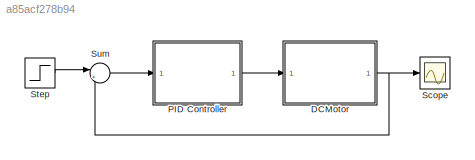
MODEL slx_a85acf278b94
KIND model
CONFIG AbsTol = auto
CONFIG EnableMultiTasking = off
CONFIG FixedStep = auto
CONFIG MaxStep = auto
CONFIG MinStep = auto
CONFIG RelTol = 1e-3
CONFIG SampleTimeConstraint = Unconstrained
CONFIG SolverName = VariableStepAuto
CONFIG StartTime = 0.0
CONFIG StopTime = 10.0
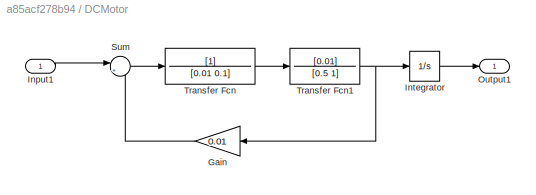
BLOCK [SubSystem] DCMotor
BLOCK [Gain] DCMotor/Gain
  Gain = 0.01
  NameLocation = top
BLOCK [Inport] DCMotor/Input1
BLOCK [Integrator] DCMotor/Integrator
BLOCK [Outport] DCMotor/Output1
BLOCK [Sum] DCMotor/Sum
  Inputs = |+-
BLOCK [TransferFcn] DCMotor/Transfer Fcn
  Denominator = [0.01 0.1]
BLOCK [TransferFcn] DCMotor/Transfer Fcn1
  Denominator = [0.5 1]
  Numerator = [0.01]
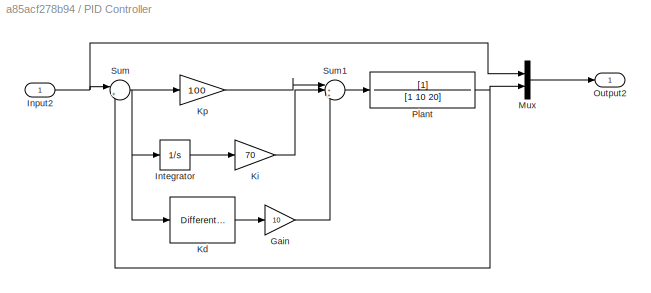
BLOCK [SubSystem] PID Controller
BLOCK [Gain] PID Controller/Gain
  Gain = 10
BLOCK [Inport] PID Controller/Input2
BLOCK [Integrator] PID Controller/Integrator
BLOCK [Reference] PID Controller/Kd  REF=dspfdesign/Differentiator Filter
  SourceBlock = dspfdesign/Differentiator Filter
  SourceType = dsp.simulink.Differentiator
BLOCK [Gain] PID Controller/Ki
  Gain = 70
BLOCK [Gain] PID Controller/Kp
  Gain = 100
BLOCK [Mux] PID Controller/Mux
  DisplayOption = bar
  Inputs = 2
BLOCK [Outport] PID Controller/Output2
BLOCK [TransferFcn] PID Controller/Plant
  Denominator = [1 10 20]
BLOCK [Sum] PID Controller/Sum
  Inputs = |+-
BLOCK [Sum] PID Controller/Sum1
  Inputs = |+++
BLOCK [Scope] Scope
  Floating = off
  NumInputPorts = 1
  ScopeSpecificationString = Simulink.scopes.TimeScopeBlockCfg('CurrentConfiguration', extmgr.ConfigurationSet(extmgr.Configuration('Core','General UI',true),extmgr.Configuration('Core','Source UI',true),extmgr.Configuration('Sources','WiredSimulink',true),extmgr.Configuration('Visuals','Time Domain',true),extmgr.Configuration('Tools','Plot Navigation',true),extmgr.Configuration('Tools','Measurements',true)),'Version','2024a'...<+1ch>
BLOCK [Step] Step
  SampleTime = 0
BLOCK [Sum] Sum
  Inputs = |+-
LINE DCMotor/Gain:1 -> DCMotor/Sum:2
LINE DCMotor/Input1:1 -> DCMotor/Sum:1
LINE DCMotor/Integrator:1 -> DCMotor/Output1:1
LINE DCMotor/Sum:1 -> DCMotor/Transfer Fcn:1
NET DCMotor/Transfer Fcn1:1 -> DCMotor/Gain:1, DCMotor/Integrator:1
LINE DCMotor/Transfer Fcn:1 -> DCMotor/Transfer Fcn1:1
NET DCMotor:1 -> Scope:1, Sum:2
LINE PID Controller/Gain:1 -> PID Controller/Sum1:3
NET PID Controller/Input2:1 -> PID Controller/Mux:1, PID Controller/Sum:1
LINE PID Controller/Integrator:1 -> PID Controller/Ki:1
LINE PID Controller/Kd:1 -> PID Controller/Gain:1
LINE PID Controller/Ki:1 -> PID Controller/Sum1:2
LINE PID Controller/Kp:1 -> PID Controller/Sum1:1
LINE PID Controller/Mux:1 -> PID Controller/Output2:1
NET PID Controller/Plant:1 -> PID Controller/Mux:2, PID Controller/Sum:2
LINE PID Controller/Sum1:1 -> PID Controller/Plant:1
NET PID Controller/Sum:1 -> PID Controller/Integrator:1, PID Controller/Kd:1, PID Controller/Kp:1
LINE PID Controller:1 -> DCMotor:1
LINE Step:1 -> Sum:1
LINE Sum:1 -> PID Controller:1
note: NET lines group one-source signal fan-out (src -> all destinations, sorted); 1:1 wires keep LINE
